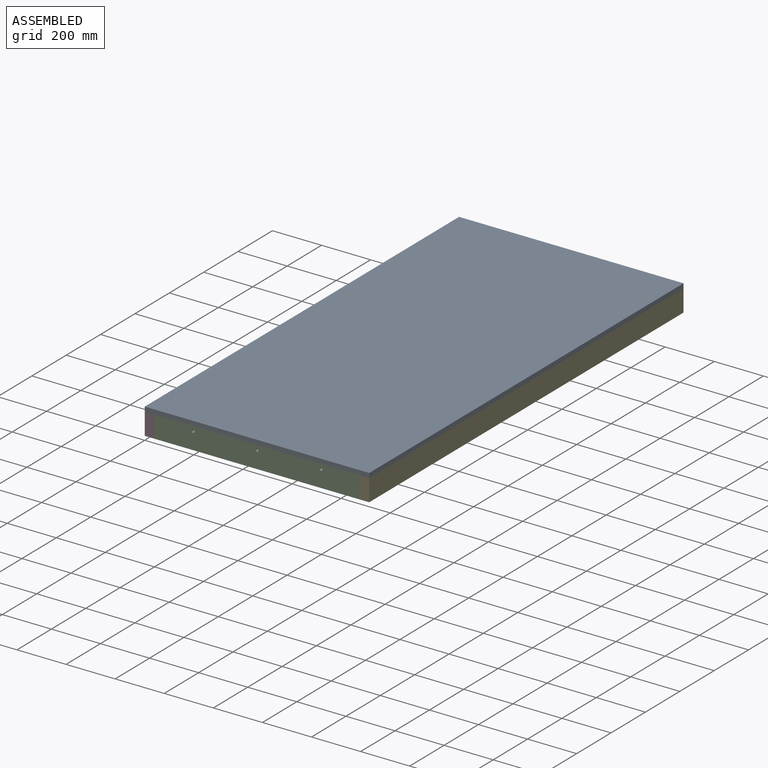
[diagram: assembled view]
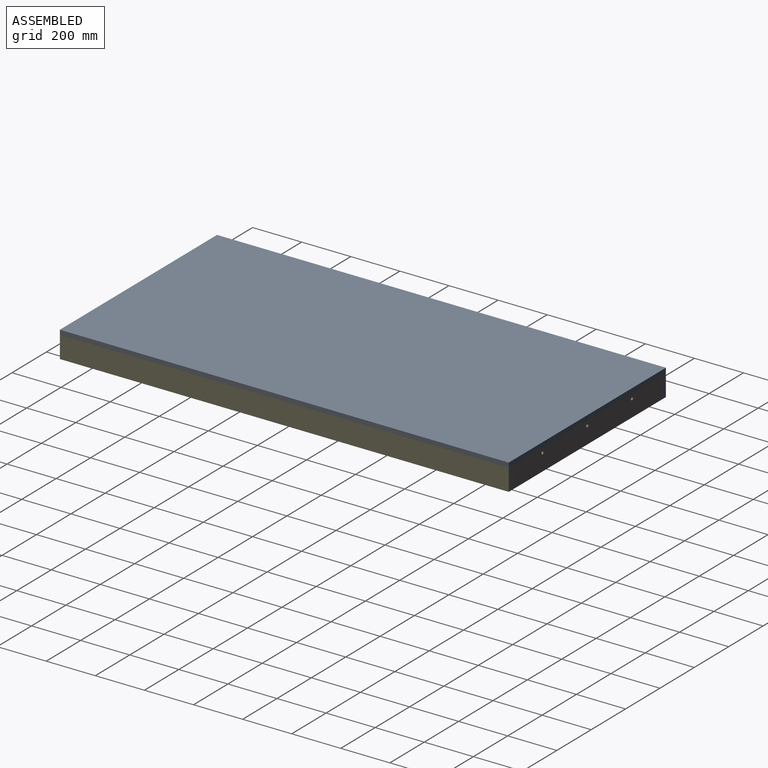
[diagram: assembled view, second angle]
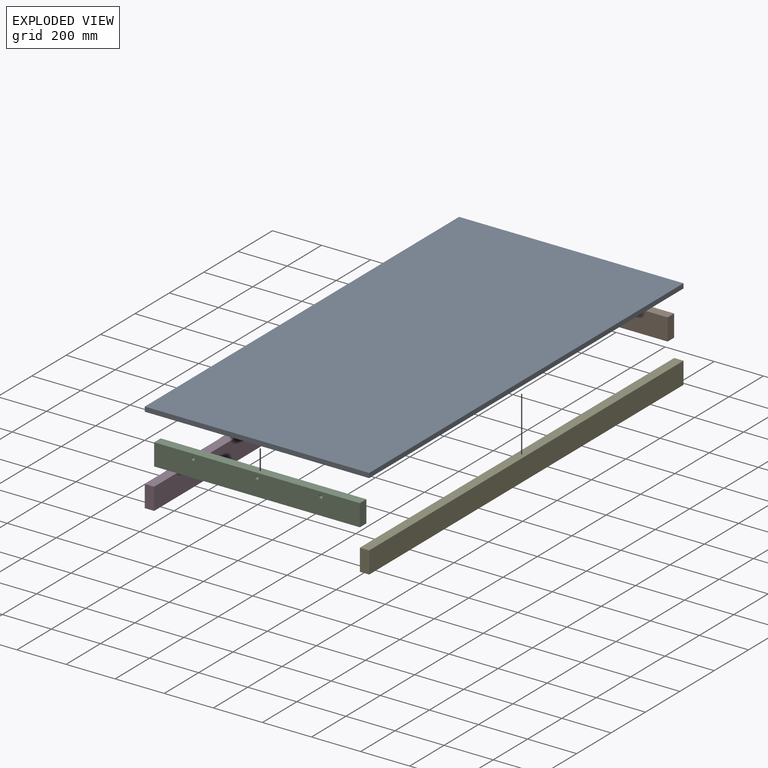
[diagram: exploded view]
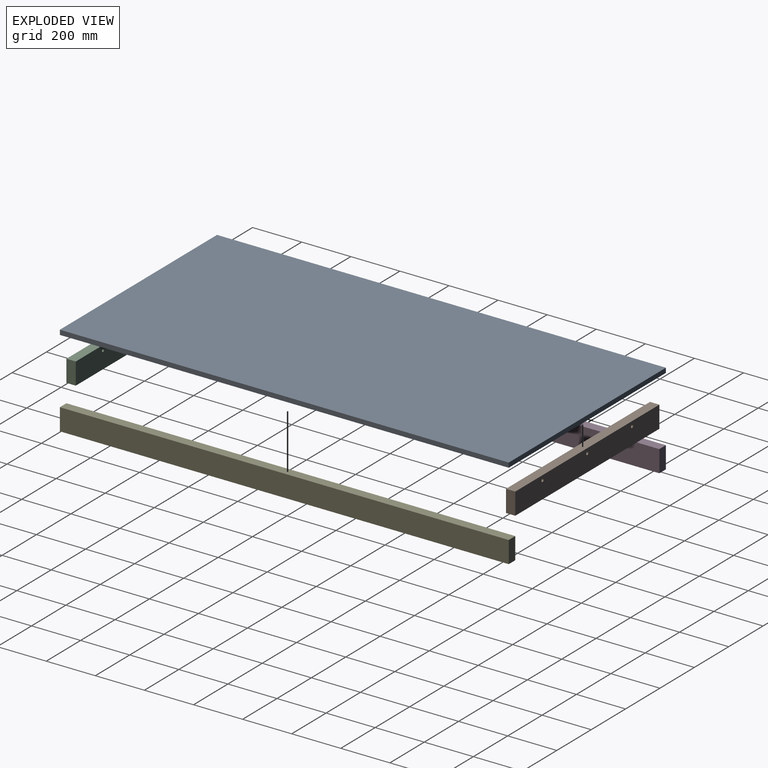
[diagram: exploded view, second angle]
ASSEMBLY  parts=5 mates=12
PART A: 6 faces, bbox 914.4x1828.8x19.1 mm
  f0: plane 1828.8x19.05mm, normal (-1,0,0), area 34838.6mm2, adj f1,f3,f4,f5
  f1: plane 914.4x19.05mm, normal (0,-1,0), area 17419.3mm2, adj f0,f2,f4,f5
  f2: plane 1828.8x19.05mm, normal (1,0,0), area 34838.6mm2, adj f1,f3,f4,f5
  f3: plane 914.4x19.05mm, normal (0,1,0), area 17419.3mm2, adj f0,f2,f4,f5
  f4: plane 1828.8x914.4mm, normal (0,0,1), area 1672254.7mm2, adj f0,f1,f2,f3
  f5: plane 1828.8x914.4mm, normal (0,0,-1), area 1672254.7mm2, adj f0,f1,f2,f3
PART B: 9 faces, bbox 838.2x38.1x88.9 mm
  f0: plane 838.2x38.1mm, normal (0,0,1), area 31935.4mm2, adj f1,f3,f4,f5
  f1: plane 838.2x88.9mm, normal (0,-1,0), area 74135.9mm2, adj f0,f2,f4,f5,f6,f7,f8
  f2: plane 838.2x38.1mm, normal (0,0,-1), area 31935.4mm2, adj f1,f3,f4,f5
  f3: plane 838.2x88.9mm, normal (0,1,0), area 74135.9mm2, adj f0,f2,f4,f5,f6,f7,f8
  f4: plane 88.9x38.1mm, normal (-1,0,0), area 3387.1mm2, adj f0,f1,f2,f3
  f5: plane 88.9x38.1mm, normal (1,0,0), area 3387.1mm2, adj f0,f1,f2,f3
  f6: cylinder r=6.35mm len=38.1mm, axis (0,-1,0), area 1520.1mm2, adj f1,f3
  f7: cylinder r=6.35mm len=38.1mm, axis (0,-1,0), area 1520.1mm2, adj f1,f3
  f8: cylinder r=6.35mm len=38.1mm, axis (0,-1,0), area 1520.1mm2, adj f1,f3
PART C: same geometry as B
PART D: 6 faces, bbox 38.1x1828.8x88.9 mm
  f0: plane 1828.8x38.1mm, normal (0,0,1), area 69677.3mm2, adj f1,f3,f4,f5
  f1: plane 1828.8x88.9mm, normal (-1,0,0), area 162580.3mm2, adj f0,f2,f4,f5
  f2: plane 1828.8x38.1mm, normal (0,0,-1), area 69677.3mm2, adj f1,f3,f4,f5
  f3: plane 1828.8x88.9mm, normal (1,0,0), area 162580.3mm2, adj f0,f2,f4,f5
  f4: plane 88.9x38.1mm, normal (0,1,0), area 3387.1mm2, adj f0,f1,f2,f3
  f5: plane 88.9x38.1mm, normal (0,-1,0), area 3387.1mm2, adj f0,f1,f2,f3
PART E: same geometry as D
PLACE A t=(-653.08,-600.22,-906.34)mm
PLACE B t=(-301.06,643.29,-990.04)mm
PLACE C t=(-301.06,-1147.41,-990.04)mm
PLACE D t=(-1080.4,-1288.64,-928.9)mm
PLACE E t=(-204.1,-1288.64,-928.9)mm
MATE planar E.f1 <-> B.f5  axis (-1,0,0) through (-301.06,-374.24,-950.79)mm
MATE planar A.f5 <-> E.f0  axis (0,0,-1) through (-720.16,-374.24,-906.34)mm
MATE planar A.f5 <-> C.f0  axis (0,0,-1) through (-720.16,-374.24,-906.34)mm
MATE planar A.f1 <-> E.f5  axis (0,-1,0) through (-720.16,-1288.64,-896.82)mm
MATE planar C.f1 <-> D.f5  axis (0,-1,0) through (-720.16,-1288.64,-950.92)mm
MATE planar E.f1 <-> C.f5  axis (-1,0,0) through (-301.06,-1288.64,-950.79)mm
MATE planar A.f5 <-> D.f0  axis (0,0,-1) through (-720.16,-374.24,-906.34)mm
MATE planar A.f2 <-> E.f3  axis (1,0,0) through (-262.96,-374.24,-896.82)mm
MATE planar A.f5 <-> B.f0  axis (0,0,-1) through (-720.16,-374.24,-906.34)mm
MATE planar E.f4 <-> B.f3  axis (0,1,0) through (-262.96,540.16,-950.79)mm
MATE planar A.f1 <-> C.f1  axis (0,-1,0) through (-720.16,-1288.64,-896.82)mm
MATE planar A.f0 <-> D.f1  axis (-1,0,0) through (-1177.36,-374.24,-896.82)mm
